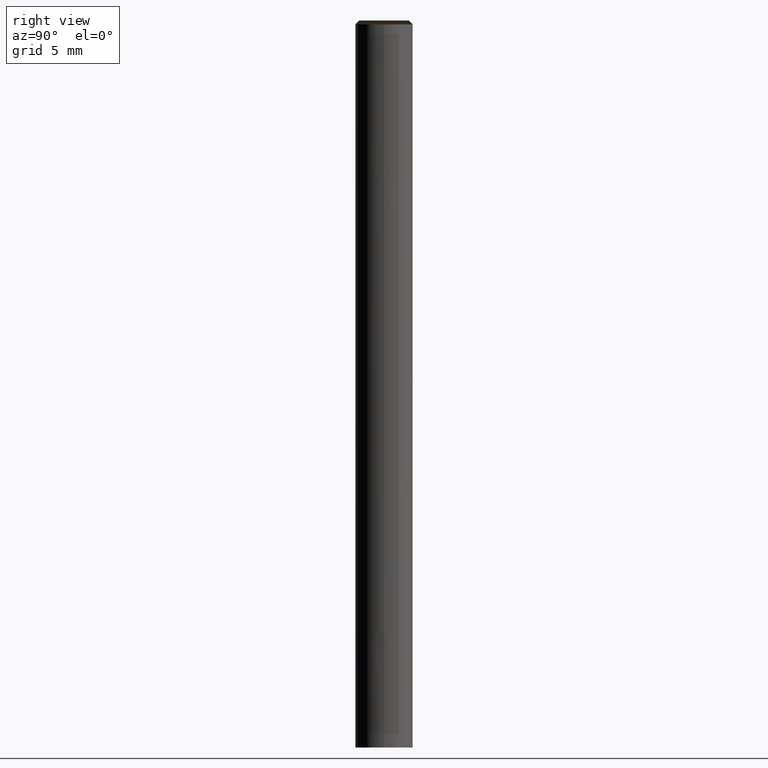
[diagram: clean part render]
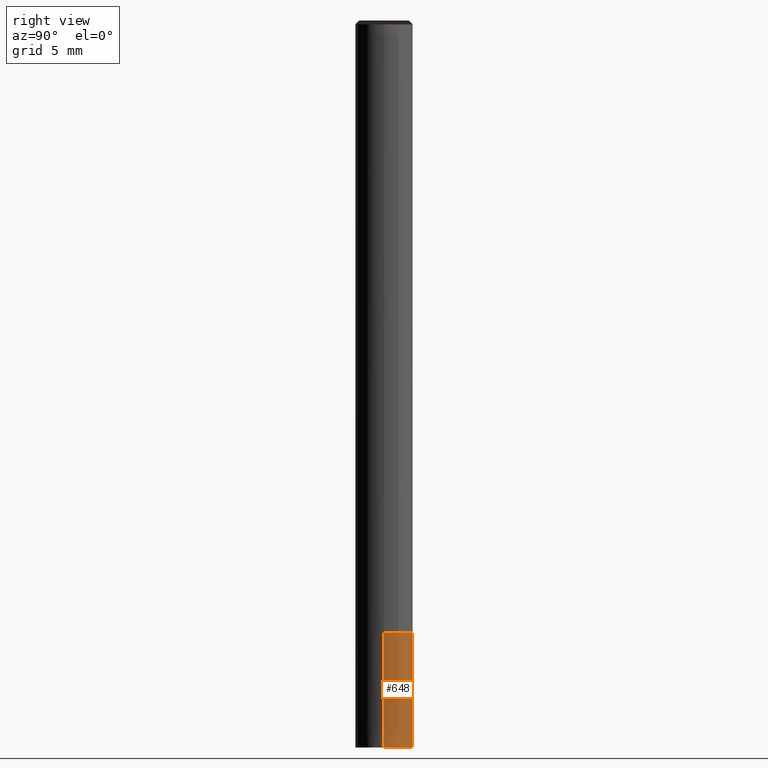
[diagram: same view with one face highlighted and labeled with its STEP entity id]
A machine part, right view. The second image highlights one B-rep face of the part: STEP entity #648.
In plain terms, the highlighted face is a freeform B-spline surface patch.
Its self-contained STEP definition (entity closure, byte-faithful):
#574=CARTESIAN_POINT('',(1.5,0.0,-6.0));
#575=CARTESIAN_POINT('',(1.5,1.5,-6.0));
#576=CARTESIAN_POINT('',(0.0,1.5,-6.0));
#577=CARTESIAN_POINT('',(-1.5,1.5,-6.0));
#578=CARTESIAN_POINT('',(-1.5,0.0,-6.0));
#579=CARTESIAN_POINT('',(1.5,0.0,0.0));
#580=CARTESIAN_POINT('',(1.5,1.5,0.0));
#581=CARTESIAN_POINT('',(0.0,1.5,0.0));
#582=CARTESIAN_POINT('',(-1.5,1.5,0.0));
#583=CARTESIAN_POINT('',(-1.5,0.0,0.0));
#629=(
BOUNDED_SURFACE()
B_SPLINE_SURFACE(1,2,(
(#574,#575,#576,#577,#578),
(#579,#580,#581,#582,#583)
), .UNSPECIFIED.,.F.,.F.,.F.)
B_SPLINE_SURFACE_WITH_KNOTS((2,2),(3,2,3),(
0.0,1.0),(
0.0,0.5,1.0), .UNSPECIFIED.)
GEOMETRIC_REPRESENTATION_ITEM()
RATIONAL_B_SPLINE_SURFACE(((1.0,0.707106781187,1.0,0.707106781187,1.0),
(1.0,0.707106781187,1.0,0.707106781187,1.0)
))
REPRESENTATION_ITEM('')
SURFACE()
);
#630=(
BOUNDED_CURVE()
B_SPLINE_CURVE(2,(#578,#577,#576,#575,#574),.UNSPECIFIED.,.F.,.F.)
B_SPLINE_CURVE_WITH_KNOTS((3,2,3),
(0.0,0.5,1.0),.UNSPECIFIED.)
CURVE()
GEOMETRIC_REPRESENTATION_ITEM()
RATIONAL_B_SPLINE_CURVE((1.0,0.707106781187,1.0,0.707106781187,1.0))
REPRESENTATION_ITEM('')
);
#631=(
BOUNDED_CURVE()
B_SPLINE_CURVE(1,(#574,#579),.UNSPECIFIED.,.F.,.F.)
B_SPLINE_CURVE_WITH_KNOTS((2,2),
(0.0,1.0),.UNSPECIFIED.)
CURVE()
GEOMETRIC_REPRESENTATION_ITEM()
RATIONAL_B_SPLINE_CURVE((1.0,1.0))
REPRESENTATION_ITEM('')
);
#632=(
BOUNDED_CURVE()
B_SPLINE_CURVE(2,(#579,#580,#581,#582,#583),.UNSPECIFIED.,.F.,.F.)
B_SPLINE_CURVE_WITH_KNOTS((3,2,3),
(0.0,0.5,1.0),.UNSPECIFIED.)
CURVE()
GEOMETRIC_REPRESENTATION_ITEM()
RATIONAL_B_SPLINE_CURVE((1.0,0.707106781187,1.0,0.707106781187,1.0))
REPRESENTATION_ITEM('')
);
#633=(
BOUNDED_CURVE()
B_SPLINE_CURVE(1,(#583,#578),.UNSPECIFIED.,.F.,.F.)
B_SPLINE_CURVE_WITH_KNOTS((2,2),
(0.0,1.0),.UNSPECIFIED.)
CURVE()
GEOMETRIC_REPRESENTATION_ITEM()
RATIONAL_B_SPLINE_CURVE((1.0,1.0))
REPRESENTATION_ITEM('')
);
#634=VERTEX_POINT('',#574);
#635=VERTEX_POINT('',#578);
#636=VERTEX_POINT('',#579);
#637=VERTEX_POINT('',#583);
#638=EDGE_CURVE('',#635,#634,#630,.T.);
#639=EDGE_CURVE('',#634,#636,#631,.T.);
#640=EDGE_CURVE('',#636,#637,#632,.T.);
#641=EDGE_CURVE('',#637,#635,#633,.T.);
#642=ORIENTED_EDGE('',*,*,#638,.T.);
#643=ORIENTED_EDGE('',*,*,#639,.T.);
#644=ORIENTED_EDGE('',*,*,#640,.T.);
#645=ORIENTED_EDGE('',*,*,#641,.T.);
#646=EDGE_LOOP('',(#642,#643,#644,#645));
#647=FACE_OUTER_BOUND('',#646,.T.);
#648=ADVANCED_FACE('',(#647),#629,.T.);